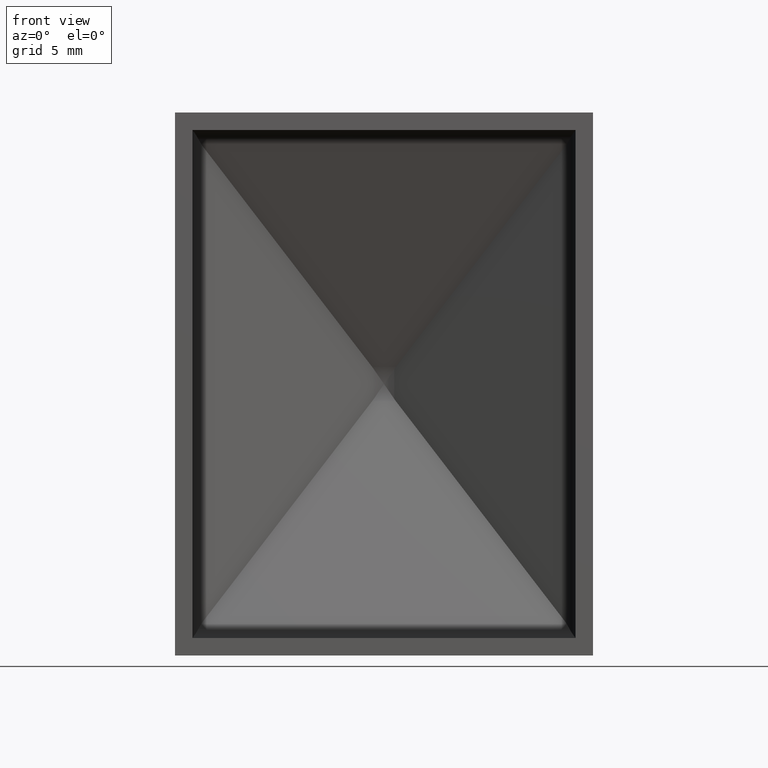
[diagram: clean part render]
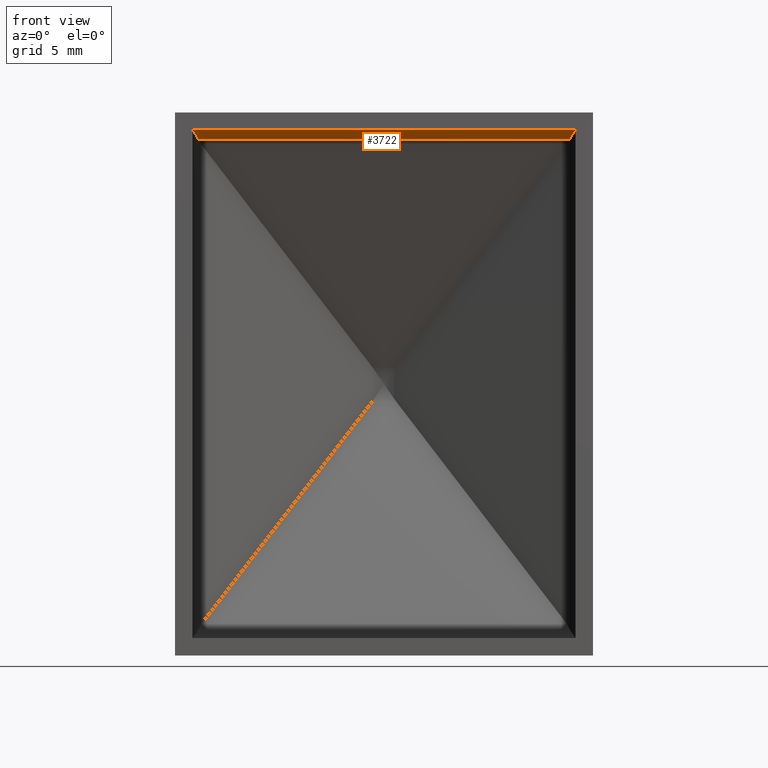
[diagram: same view with one face highlighted and labeled with its STEP entity id]
A machine part, front view. The second image highlights one B-rep face of the part: STEP entity #3722.
In plain terms, the highlighted cylindrical surface (edge-blend (fillet) strip) has radius 1.2544 mm, axis along (1, 0, -0).
Its self-contained STEP definition (entity closure, byte-faithful):
#202 = VERTEX_POINT ( 'NONE', #12991 ) ;
#433 = CYLINDRICAL_SURFACE ( 'NONE', #12223, 1.254385337577820003 ) ;
#436 = CARTESIAN_POINT ( 'NONE',  ( -14.97827143062366595, 10.32600729095936920, 19.82134462968860333 ) ) ;
#488 = CARTESIAN_POINT ( 'NONE',  ( -15.14237450061064649, 10.09232732462494653, 20.07247944126415362 ) ) ;
#997 = CARTESIAN_POINT ( 'NONE',  ( 14.92179134413680153, 10.38815566616622554, 19.72444545150556294 ) ) ;
#1463 = LINE ( 'NONE', #12033, #17171 ) ;
#1636 = DIRECTION ( 'NONE',  ( 1.000000000000000000, 1.369541201499284725E-15, -0.000000000000000000 ) ) ;
#2251 = EDGE_CURVE ( 'NONE', #3356, #16961, #12530, .T. ) ;
#2624 = CARTESIAN_POINT ( 'NONE',  ( -26.75000000000001066, 10.43686438088132995, 19.61814305772312395 ) ) ;
#2714 = LINE ( 'NONE', #2624, #7210 ) ;
#2884 = CARTESIAN_POINT ( 'NONE',  ( 14.87229824412478507, 10.43686438088137791, 19.61814305772314171 ) ) ;
#2888 = ORIENTED_EDGE ( 'NONE', *, *, #3444, .F. ) ;
#3115 = CARTESIAN_POINT ( 'NONE',  ( -15.34999999999999964, 9.423924627749871163, 20.35000000000000497 ) ) ;
#3356 = VERTEX_POINT ( 'NONE', #3470 ) ;
#3444 = EDGE_CURVE ( 'NONE', #202, #3356, #1463, .T. ) ;
#3466 = CARTESIAN_POINT ( 'NONE',  ( 15.14261214394904798, 10.09164384900071454, 20.07278540159239455 ) ) ;
#3470 = CARTESIAN_POINT ( 'NONE',  ( 15.34999999999999609, 9.296493103079967568, 20.35000000000000142 ) ) ;
#3643 = EDGE_CURVE ( 'NONE', #12627, #16961, #2714, .T. ) ;
#3722 = ADVANCED_FACE ( 'NONE', ( #12292 ), #433, .F. ) ;
#4363 = DIRECTION ( 'NONE',  ( 0.000000000000000000, 1.000000000000000000, 0.000000000000000000 ) ) ;
#5522 = EDGE_CURVE ( 'NONE', #12627, #202, #17092, .T. ) ;
#5691 = ORIENTED_EDGE ( 'NONE', *, *, #2251, .F. ) ;
#7103 = DIRECTION ( 'NONE',  ( 1.000000000000000000, 1.131893862294555804E-15, 5.186439671262600458E-16 ) ) ;
#7182 = CARTESIAN_POINT ( 'NONE',  ( -14.87229824412480994, 10.43686438088134238, 19.61814305772313105 ) ) ;
#7210 = VECTOR ( 'NONE', #7103, 1000.000000000000000 ) ;
#7771 = CARTESIAN_POINT ( 'NONE',  ( 15.08806224348648328, 10.17856215016225185, 19.99472790792547627 ) ) ;
#8590 = CARTESIAN_POINT ( 'NONE',  ( -15.08869327799758153, 10.17765737708077012, 19.99568853197853002 ) ) ;
#8844 = ORIENTED_EDGE ( 'NONE', *, *, #3643, .T. ) ;
#9107 = CARTESIAN_POINT ( 'NONE',  ( 14.97819299317603381, 10.32605531236021257, 19.82118484461140540 ) ) ;
#9463 = EDGE_LOOP ( 'NONE', ( #5691, #2888, #16986, #8844 ) ) ;
#9888 = CARTESIAN_POINT ( 'NONE',  ( -15.27809645997709609, 9.786179726904174814, 20.25712701318253295 ) ) ;
#9946 = CARTESIAN_POINT ( 'NONE',  ( -15.33466010626163900, 9.548929487481535361, 20.33059636364347966 ) ) ;
#10598 = DIRECTION ( 'NONE',  ( 1.000000000000000000, 1.369541201499284725E-15, -0.000000000000000000 ) ) ;
#11255 = CARTESIAN_POINT ( 'NONE',  ( -14.92166758219849498, 10.38827746667869434, 19.72417963282981290 ) ) ;
#11851 = CARTESIAN_POINT ( 'NONE',  ( 15.23673162592563379, 9.897544153062598937, 20.20280254058178926 ) ) ;
#12033 = CARTESIAN_POINT ( 'NONE',  ( -26.75000000000000355, 9.296493103079908948, 20.35000000000000142 ) ) ;
#12223 = AXIS2_PLACEMENT_3D ( 'NONE', #16460, #1636, #4363 ) ;
#12292 = FACE_OUTER_BOUND ( 'NONE', #9463, .T. ) ;
#12530 = B_SPLINE_CURVE_WITH_KNOTS ( 'NONE', 3,
 ( #13153, #14557, #17246, #14493, #11851, #3466, #7771, #9107, #997, #12980 ),
 .UNSPECIFIED., .F., .F.,
 ( 4, 2, 2, 2, 4 ),
 ( 0.007746781777780977103, 0.008124562980908318216, 0.008502344184035658461, 0.008880125387162998707, 0.009257906590290338952 ),
 .UNSPECIFIED. ) ;
#12627 = VERTEX_POINT ( 'NONE', #14670 ) ;
#12980 = CARTESIAN_POINT ( 'NONE',  ( 14.87229824412478507, 10.43686438088137791, 19.61814305772314171 ) ) ;
#12991 = CARTESIAN_POINT ( 'NONE',  ( -15.34999999999999076, 9.296493103079916054, 20.35000000000000142 ) ) ;
#13153 = CARTESIAN_POINT ( 'NONE',  ( 15.34999999999999609, 9.296493103079967568, 20.35000000000000142 ) ) ;
#14493 = CARTESIAN_POINT ( 'NONE',  ( 15.27769235868910691, 9.787415655783222590, 20.25659684993977550 ) ) ;
#14557 = CARTESIAN_POINT ( 'NONE',  ( 15.34999999999999609, 9.423250989925206156, 20.35000000000000142 ) ) ;
#14670 = CARTESIAN_POINT ( 'NONE',  ( -14.87229824412480994, 10.43686438088134238, 19.61814305772313105 ) ) ;
#15406 = CARTESIAN_POINT ( 'NONE',  ( -15.23804731063724205, 9.894635276344919461, 20.20459745980272004 ) ) ;
#16460 = CARTESIAN_POINT ( 'NONE',  ( -26.75000000000000355, 9.296493103079908948, 19.09561466242217875 ) ) ;
#16720 = CARTESIAN_POINT ( 'NONE',  ( -15.34999999999999076, 9.296493103079916054, 20.35000000000000142 ) ) ;
#16961 = VERTEX_POINT ( 'NONE', #2884 ) ;
#16986 = ORIENTED_EDGE ( 'NONE', *, *, #5522, .F. ) ;
#17092 = B_SPLINE_CURVE_WITH_KNOTS ( 'NONE', 3,
 ( #7182, #11255, #436, #8590, #488, #15406, #9888, #9946, #3115, #16720 ),
 .UNSPECIFIED., .F., .F.,
 ( 4, 2, 2, 2, 4 ),
 ( 0.007473035587638262103, 0.007852077891656525366, 0.008231120195674788628, 0.008610162499693051891, 0.008989204803711315153 ),
 .UNSPECIFIED. ) ;
#17171 = VECTOR ( 'NONE', #10598, 1000.000000000000000 ) ;
#17246 = CARTESIAN_POINT ( 'NONE',  ( 15.33441837818005737, 9.550397215758474445, 20.33028761266073658 ) ) ;